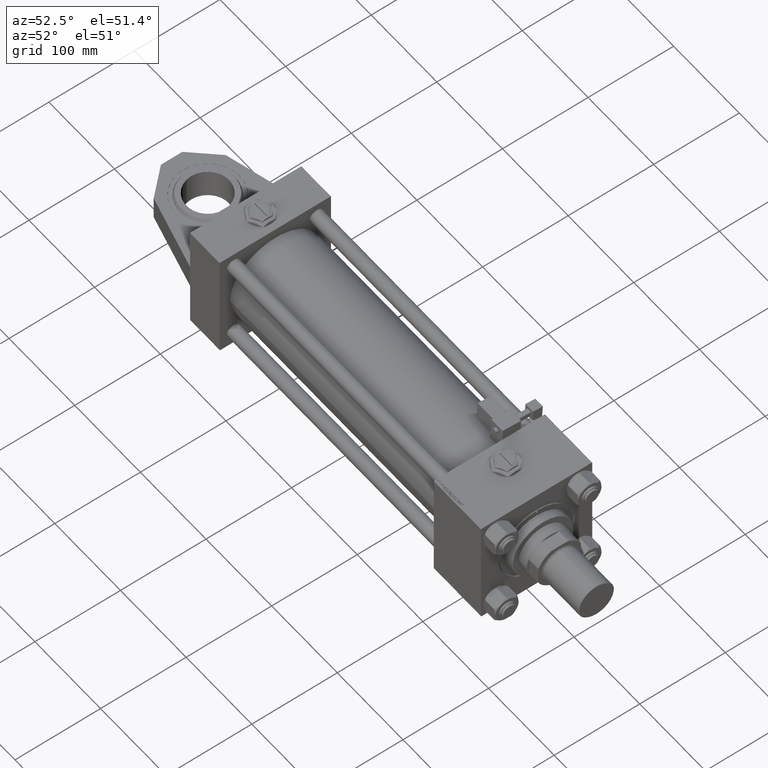
[diagram: clean part render]
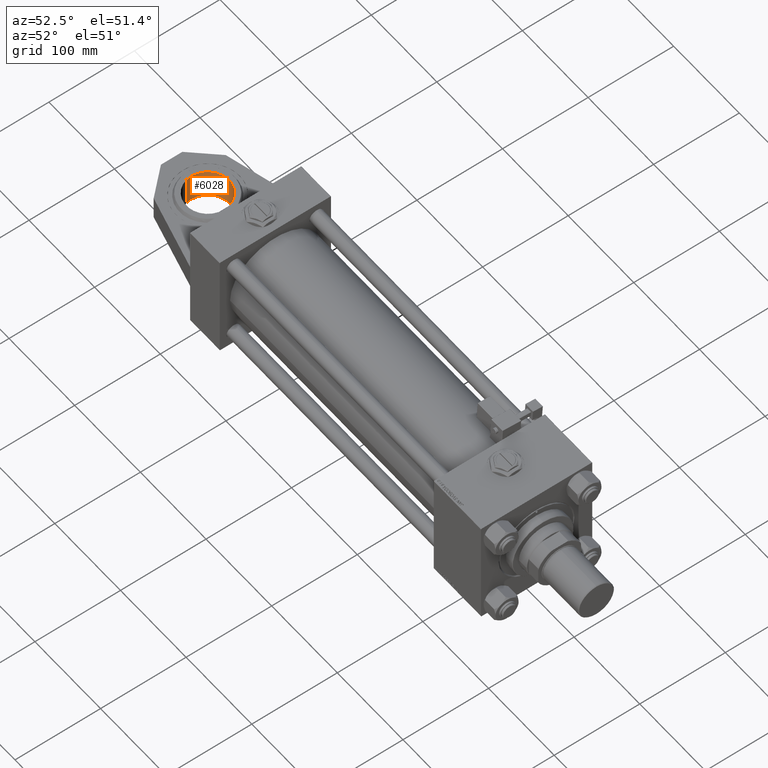
[diagram: same view with one face highlighted and labeled with its STEP entity id]
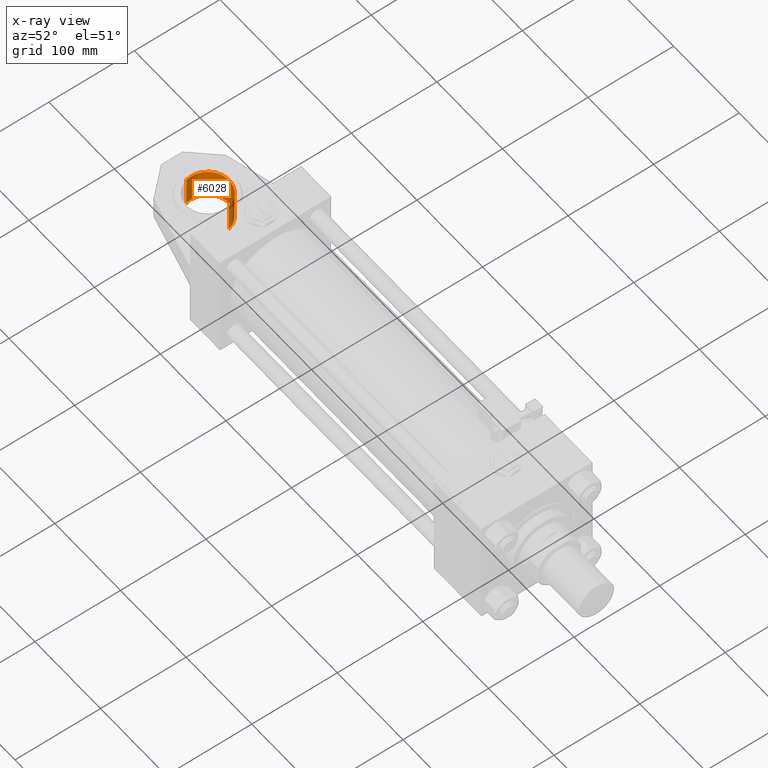
[diagram: x-ray of the same camera — body ghosted, the highlighted face saturated]
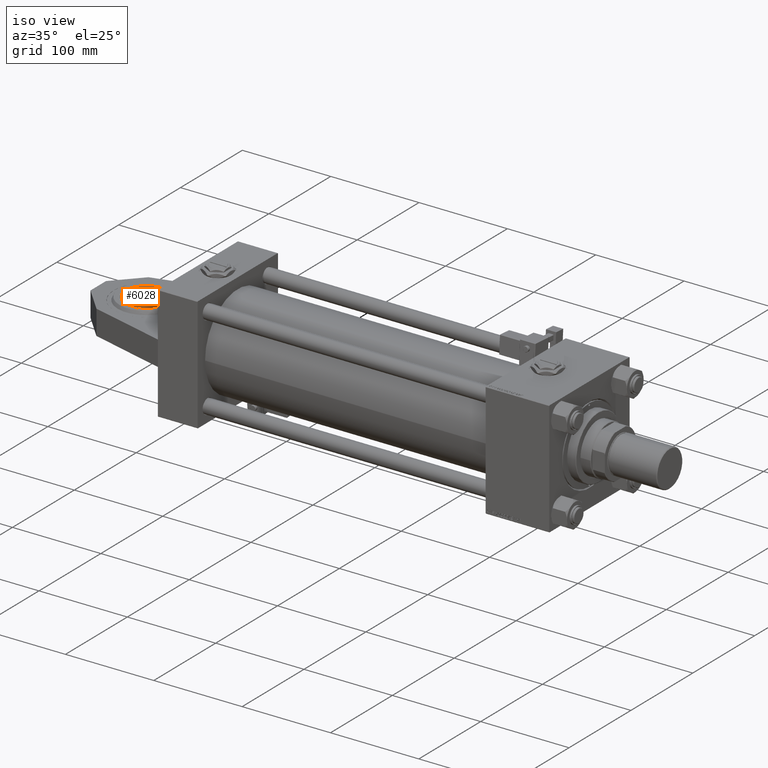
[diagram: same view with one face highlighted and labeled with its STEP entity id]
A machine part, auxiliary view. The second image highlights one B-rep face of the part: STEP entity #6028.
The next image is the same camera in x-ray: the body ghosted, the highlighted face saturated — about 8% of this face is hidden behind the body in this view.
A second angle (iso view) of the same face is appended — the face is thin or edge-on in the first view.
In plain terms, the highlighted cylindrical surface (edge-blend (fillet) strip) has radius 25 mm, axis along (0, 0, 1).
Its self-contained STEP definition (entity closure, byte-faithful):
#2692 = CARTESIAN_POINT ( 'NONE',  ( -25.00000000000000000, 3.061616997868383043E-15, 17.19999999999999929 ) ) ;
#4096 = CARTESIAN_POINT ( 'NONE',  ( -25.00000000000000000, 3.061616997868383043E-15, 0.000000000000000000 ) ) ;
#5127 = VECTOR ( 'NONE', #30113, 1000.000000000000000 ) ;
#5544 = VERTEX_POINT ( 'NONE', #32374 ) ;
#6028 = ADVANCED_FACE ( 'NONE', ( #15967 ), #53494, .F. ) ;
#6451 = CARTESIAN_POINT ( 'NONE',  ( 0.000000000000000000, 0.000000000000000000, 0.000000000000000000 ) ) ;
#6530 = CARTESIAN_POINT ( 'NONE',  ( -25.00000000000000000, 3.061616997868383043E-15, -17.19999999999999929 ) ) ;
#6940 = ORIENTED_EDGE ( 'NONE', *, *, #32162, .T. ) ;
#8093 = DIRECTION ( 'NONE',  ( -0.000000000000000000, -0.000000000000000000, 1.000000000000000000 ) ) ;
#10756 = VERTEX_POINT ( 'NONE', #41992 ) ;
#11966 = EDGE_CURVE ( 'NONE', #10756, #5544, #17862, .T. ) ;
#14348 = AXIS2_PLACEMENT_3D ( 'NONE', #32864, #45745, #41533 ) ;
#15967 = FACE_OUTER_BOUND ( 'NONE', #34947, .T. ) ;
#16264 = EDGE_CURVE ( 'NONE', #10756, #53177, #33319, .T. ) ;
#16367 = AXIS2_PLACEMENT_3D ( 'NONE', #45441, #37033, #32550 ) ;
#16961 = ORIENTED_EDGE ( 'NONE', *, *, #11966, .F. ) ;
#17862 = LINE ( 'NONE', #38302, #36409 ) ;
#18324 = AXIS2_PLACEMENT_3D ( 'NONE', #6451, #19340, #49835 ) ;
#19340 = DIRECTION ( 'NONE',  ( -0.000000000000000000, -0.000000000000000000, 1.000000000000000000 ) ) ;
#23254 = CIRCLE ( 'NONE', #14348, 25.00000000000000000 ) ;
#27656 = VERTEX_POINT ( 'NONE', #2692 ) ;
#30113 = DIRECTION ( 'NONE',  ( -0.000000000000000000, -0.000000000000000000, 1.000000000000000000 ) ) ;
#32162 = EDGE_CURVE ( 'NONE', #53177, #27656, #34850, .T. ) ;
#32374 = CARTESIAN_POINT ( 'NONE',  ( 25.00000000000000000, 0.000000000000000000, 17.19999999999999929 ) ) ;
#32550 = DIRECTION ( 'NONE',  ( 1.000000000000000000, 0.000000000000000000, 0.000000000000000000 ) ) ;
#32864 = CARTESIAN_POINT ( 'NONE',  ( 0.000000000000000000, 0.000000000000000000, 17.19999999999999929 ) ) ;
#33319 = CIRCLE ( 'NONE', #16367, 25.00000000000000000 ) ;
#34850 = LINE ( 'NONE', #4096, #5127 ) ;
#34947 = EDGE_LOOP ( 'NONE', ( #37658, #6940, #51920, #16961 ) ) ;
#36409 = VECTOR ( 'NONE', #8093, 1000.000000000000000 ) ;
#37033 = DIRECTION ( 'NONE',  ( 0.000000000000000000, 0.000000000000000000, -1.000000000000000000 ) ) ;
#37658 = ORIENTED_EDGE ( 'NONE', *, *, #16264, .T. ) ;
#38302 = CARTESIAN_POINT ( 'NONE',  ( 25.00000000000000000, 0.000000000000000000, 0.000000000000000000 ) ) ;
#41533 = DIRECTION ( 'NONE',  ( -1.000000000000000000, 0.000000000000000000, 0.000000000000000000 ) ) ;
#41992 = CARTESIAN_POINT ( 'NONE',  ( 25.00000000000000000, 0.000000000000000000, -17.19999999999999929 ) ) ;
#44783 = EDGE_CURVE ( 'NONE', #27656, #5544, #23254, .T. ) ;
#45441 = CARTESIAN_POINT ( 'NONE',  ( 0.000000000000000000, 0.000000000000000000, -17.19999999999999929 ) ) ;
#45745 = DIRECTION ( 'NONE',  ( -0.000000000000000000, -0.000000000000000000, 1.000000000000000000 ) ) ;
#49835 = DIRECTION ( 'NONE',  ( 1.000000000000000000, 0.000000000000000000, 0.000000000000000000 ) ) ;
#51920 = ORIENTED_EDGE ( 'NONE', *, *, #44783, .T. ) ;
#53177 = VERTEX_POINT ( 'NONE', #6530 ) ;
#53494 = CYLINDRICAL_SURFACE ( 'NONE', #18324, 25.00000000000000000 ) ;